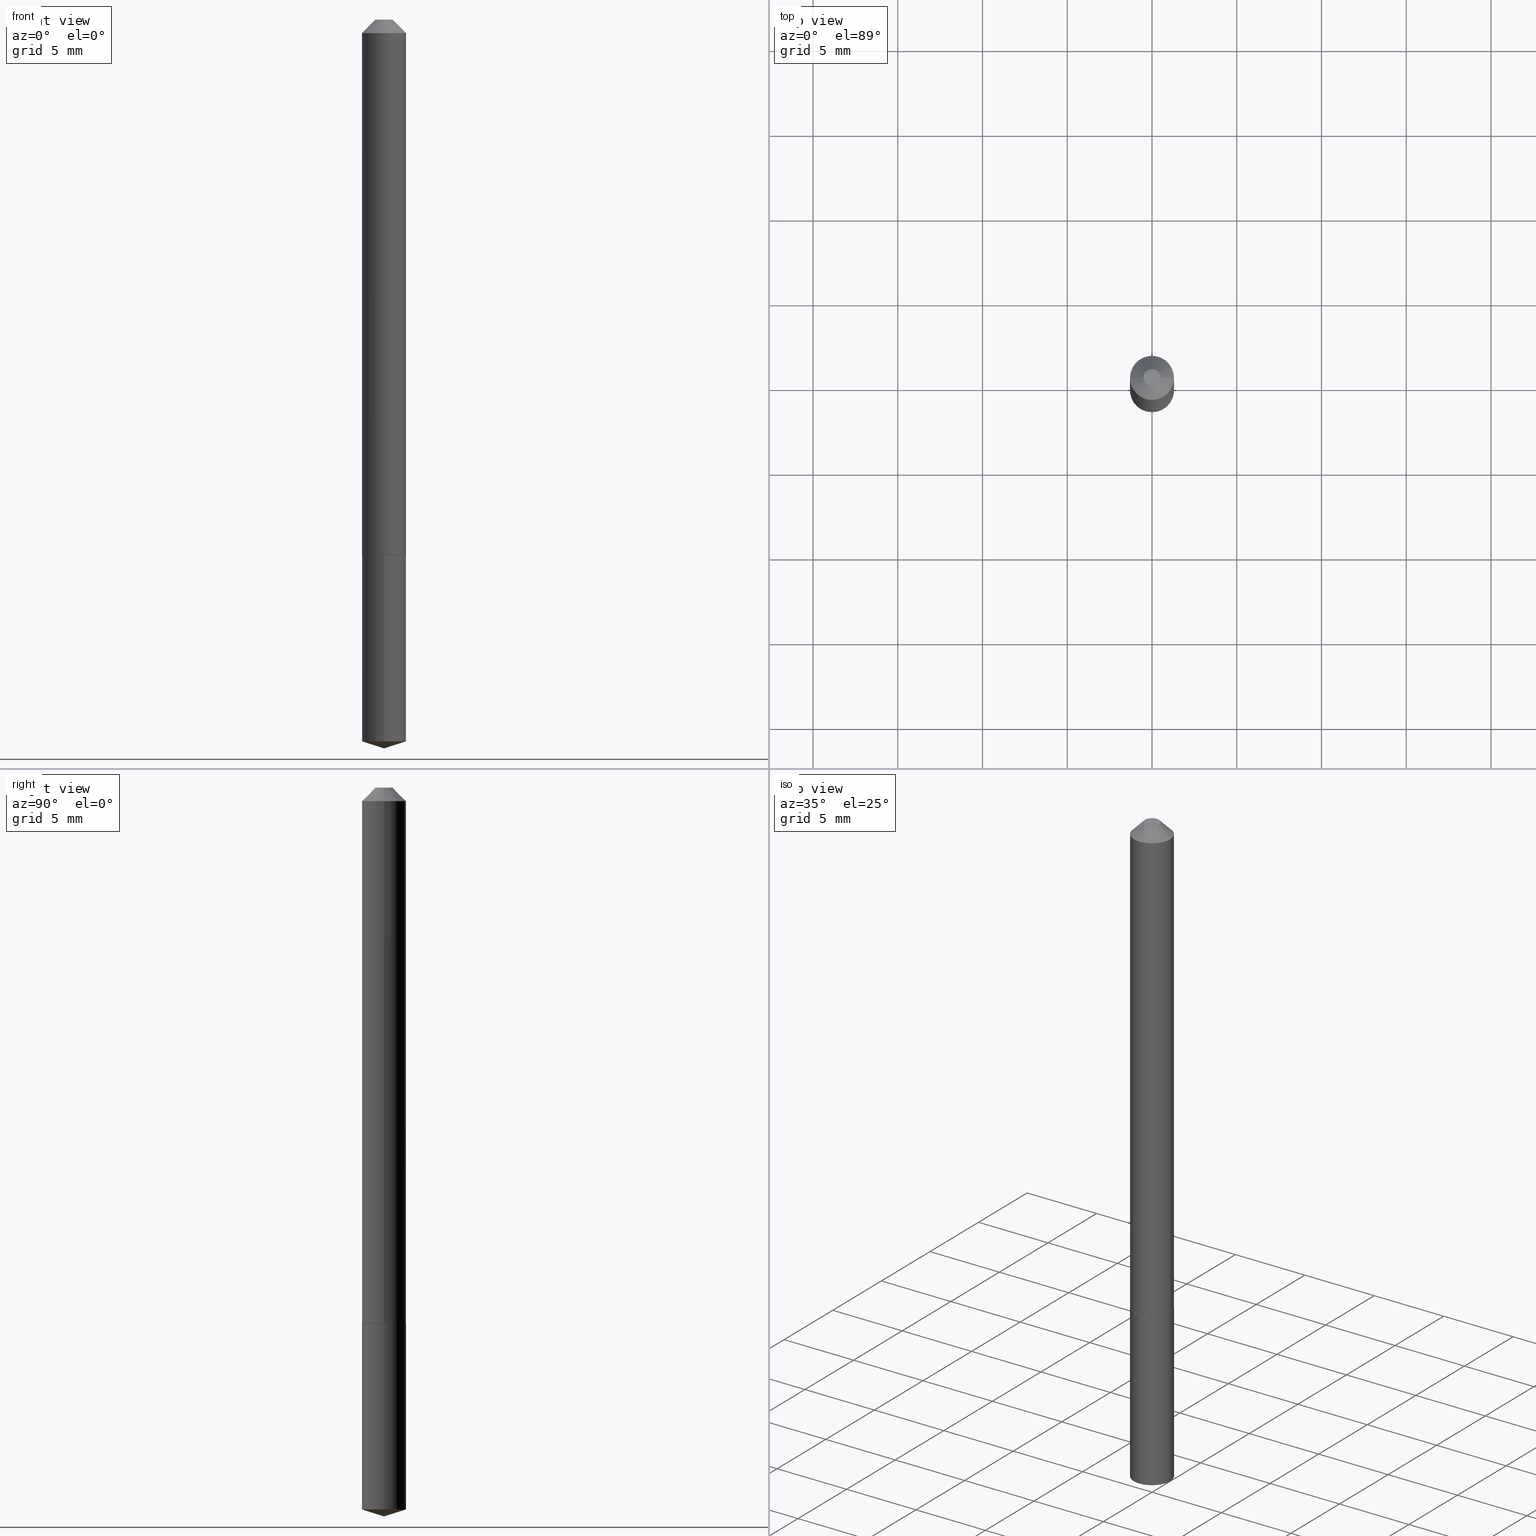
[diagram: canonical four-view strip — front | top / right | iso, engineering-drawing reading convention]
A machine part, canonical four-view strip (front | top / right | iso — engineering-drawing reading convention). The complete STEP part file that produces these views, byte-faithful:
ISO-10303-21;
HEADER;
FILE_DESCRIPTION (( 'STEP AP203' ),
    '1' );
FILE_NAME ('68674.STEP',
    '2024-04-23T13:31:59',
    ( '' ),
    ( '' ),
    'SwSTEP 2.0',
    'SolidWorks 2023',
    '' );
FILE_SCHEMA (( 'CONFIG_CONTROL_DESIGN' ));
ENDSEC;

DATA;
#1 = EDGE_CURVE ( 'NONE', #76, #2, #41, .T. ) ;
#2 = VERTEX_POINT ( 'NONE', #346 ) ;
#3 = PERSON_AND_ORGANIZATION ( #117, #298 ) ;
#4 = APPROVAL_STATUS ( 'not_yet_approved' ) ;
#5 = CIRCLE ( 'NONE', #311, 0.05120000000000000939 ) ;
#6 = EDGE_CURVE ( 'NONE', #214, #62, #142, .T. ) ;
#7 = DIRECTION ( 'NONE',  ( 1.000000000000000000, -6.982962677686261977E-15, 0.000000000000000000 ) ) ;
#8 = FACE_OUTER_BOUND ( 'NONE', #53, .T. ) ;
#9 = DIRECTION ( 'NONE',  ( -2.445468806185136597E-29, 3.491481338843145583E-15, 1.000000000000000000 ) ) ;
#10 = DIRECTION ( 'NONE',  ( -1.000000000000000000, 6.982962677686267499E-15, 0.000000000000000000 ) ) ;
#11 = ORIENTED_EDGE ( 'NONE', *, *, #35, .T. ) ;
#12 = EDGE_CURVE ( 'NONE', #62, #241, #5, .T. ) ;
#13 = ORIENTED_EDGE ( 'NONE', *, *, #6, .F. ) ;
#14 = AXIS2_PLACEMENT_3D ( 'NONE', #375, #195, #16 ) ;
#15 = CC_DESIGN_APPROVAL ( #239, ( #253 ) ) ;
#16 = DIRECTION ( 'NONE',  ( 1.000000000000000000, -6.982962677686261977E-15, 0.000000000000000000 ) ) ;
#17 = EDGE_CURVE ( 'NONE', #317, #161, #136, .T. ) ;
#18 = DIRECTION ( 'NONE',  ( 1.000000000000000000, 0.000000000000000000, 0.000000000000000000 ) ) ;
#19 =( LENGTH_UNIT ( ) NAMED_UNIT ( * ) SI_UNIT ( $, .METRE. ) );
#20 = EDGE_LOOP ( 'NONE', ( #121, #255 ) ) ;
#21 = DIRECTION ( 'NONE',  ( -6.982962677686265133E-15, -1.000000000000000000, 5.335640612625512847E-15 ) ) ;
#22 = PRODUCT_DEFINITION ( 'UNKNOWN', '', #190, #111 ) ;
#23 = AXIS2_PLACEMENT_3D ( 'NONE', #189, #170, #72 ) ;
#24 = FACE_OUTER_BOUND ( 'NONE', #145, .T. ) ;
#25 = EDGE_LOOP ( 'NONE', ( #325, #276, #339 ) ) ;
#26 = FACE_OUTER_BOUND ( 'NONE', #43, .T. ) ;
#27 = APPROVAL_DATE_TIME ( #155, #50 ) ;
#28 = AXIS2_PLACEMENT_3D ( 'NONE', #48, #9, #98 ) ;
#29 = CC_DESIGN_APPROVAL ( #50, ( #22 ) ) ;
#30 = EDGE_CURVE ( 'NONE', #340, #388, #218, .T. ) ;
#31 = PERSON_AND_ORGANIZATION_ROLE ( 'design_supplier' ) ;
#32 = VERTEX_POINT ( 'NONE', #275 ) ;
#33 = APPROVAL_DATE_TIME ( #65, #57 ) ;
#34 = EDGE_CURVE ( 'NONE', #317, #201, #37, .T. ) ;
#35 = EDGE_CURVE ( 'NONE', #241, #380, #222, .T. ) ;
#36 = ORIENTED_EDGE ( 'NONE', *, *, #30, .F. ) ;
#37 = CIRCLE ( 'NONE', #28, 0.01995000000000000592 ) ;
#38 = AXIS2_PLACEMENT_3D ( 'NONE', #144, #109, #382 ) ;
#39 = PERSON_AND_ORGANIZATION ( #117, #298 ) ;
#40 = APPROVAL_STATUS ( 'not_yet_approved' ) ;
#41 = CIRCLE ( 'NONE', #23, 0.05070000000000036283 ) ;
#42 = LOCAL_TIME ( 9, 31, 59.00000000000000000, #226 ) ;
#43 = EDGE_LOOP ( 'NONE', ( #252, #182, #235, #96 ) ) ;
#44 = DIRECTION ( 'NONE',  ( -0.7071067811865452413, 2.468850131082233000E-15, -0.7071067811865497932 ) ) ;
#45 = EDGE_LOOP ( 'NONE', ( #13, #389, #200 ) ) ;
#46 = AXIS2_PLACEMENT_3D ( 'NONE', #265, #358, #114 ) ;
#47 = APPROVAL_DATE_TIME ( #107, #239 ) ;
#48 = CARTESIAN_POINT ( 'NONE',  ( -5.989671091818665474E-48, 8.551662891793964028E-34, 2.449293598294711584E-19 ) ) ;
#49 = CARTESIAN_POINT ( 'NONE',  ( 3.042407741774928155E-29, -4.343751933654757151E-15, -1.244099999999999984 ) ) ;
#50 = APPROVAL ( #40, 'UNSPECIFIED' ) ;
#51 = ORIENTED_EDGE ( 'NONE', *, *, #34, .F. ) ;
#52 = EDGE_CURVE ( 'NONE', #201, #317, #229, .T. ) ;
#53 = EDGE_LOOP ( 'NONE', ( #329, #139 ) ) ;
#54 = CONICAL_SURFACE ( 'NONE', #322, 0.05120000000000001633, 0.7853981633974450594 ) ;
#55 = DIRECTION ( 'NONE',  ( -2.438088387897960049E-29, 3.491481338843145188E-15, 1.000000000000000000 ) ) ;
#56 = CARTESIAN_POINT ( 'NONE',  ( 0.05120000000000016205, -4.699533882082873778E-15, -1.243600000000000039 ) ) ;
#57 = APPROVAL ( #4, 'UNSPECIFIED' ) ;
#58 = CARTESIAN_POINT ( 'NONE',  ( 3.041185007371835914E-29, -4.342006192985336437E-15, -1.243600000000000039 ) ) ;
#59 = ADVANCED_FACE ( 'NONE', ( #133 ), #130, .T. ) ;
#60 = CONICAL_SURFACE ( 'NONE', #148, 0.05120000000000001633, 0.7853981633974450594 ) ;
#61 = CARTESIAN_POINT ( 'NONE',  ( -3.575276890974957291E-16, -0.05120000000000585194, -1.676756702009396083 ) ) ;
#62 = VERTEX_POINT ( 'NONE', #342 ) ;
#63 = CARTESIAN_POINT ( 'NONE',  ( -2.994835545909332737E-48, 4.275831445896982014E-34, 1.224646799147355792E-19 ) ) ;
#64 = ADVANCED_FACE ( 'NONE', ( #192 ), #280, .F. ) ;
#65 = DATE_AND_TIME ( #212, #247 ) ;
#66 = ORIENTED_EDGE ( 'NONE', *, *, #135, .T. ) ;
#67 = PERSON_AND_ORGANIZATION ( #117, #298 ) ;
#68 = AXIS2_PLACEMENT_3D ( 'NONE', #153, #262, #383 ) ;
#69 = AXIS2_PLACEMENT_3D ( 'NONE', #210, #291, #21 ) ;
#70 = CIRCLE ( 'NONE', #38, 0.05120000000000000939 ) ;
#71 = DIRECTION ( 'NONE',  ( 2.445490304284170148E-29, -3.491450552341733464E-15, -1.000000000000000000 ) ) ;
#72 = DIRECTION ( 'NONE',  ( 1.000000000000000000, -6.982962677686261977E-15, 0.000000000000000000 ) ) ;
#73 = CONICAL_SURFACE ( 'NONE', #292, 124.8659371009161418, 1.265363707695894124 ) ;
#74 = AXIS2_PLACEMENT_3D ( 'NONE', #193, #172, #18 ) ;
#75 = DIMENSIONAL_EXPONENTS ( 1.000000000000000000, 0.000000000000000000, 0.000000000000000000, 0.000000000000000000, 0.000000000000000000, 0.000000000000000000, 0.000000000000000000 ) ;
#76 = VERTEX_POINT ( 'NONE', #257 ) ;
#77 = CARTESIAN_POINT ( 'NONE',  ( 3.042407741774928155E-29, -4.343751933654757151E-15, -1.244099999999999984 ) ) ;
#78 = DIRECTION ( 'NONE',  ( -6.982962677686265133E-15, -1.000000000000000000, 5.335640612625512847E-15 ) ) ;
#79 = ORIENTED_EDGE ( 'NONE', *, *, #320, .T. ) ;
#80 = CARTESIAN_POINT ( 'NONE',  ( 4.139970536122672457E-29, -5.910676640059319822E-15, -1.692900000000000071 ) ) ;
#81 = DIRECTION ( 'NONE',  ( 6.776566513254262871E-15, 0.9537169507482294861, 0.3007057995042648479 ) ) ;
#82 = ADVANCED_FACE ( 'NONE', ( #177 ), #232, .T. ) ;
#83 = EDGE_LOOP ( 'NONE', ( #154, #378, #66, #123 ) ) ;
#84 =( NAMED_UNIT ( * ) PLANE_ANGLE_UNIT ( ) SI_UNIT ( $, .RADIAN. ) );
#85 = AXIS2_PLACEMENT_3D ( 'NONE', #249, #169, #373 ) ;
#86 = LOCAL_TIME ( 9, 31, 59.00000000000000000, #207 ) ;
#87 = DIRECTION ( 'NONE',  ( 2.445468806185136597E-29, -3.491481338843145583E-15, -1.000000000000000000 ) ) ;
#88 = MANIFOLD_SOLID_BREP ( 'Body-Move/Copy2[2]', #198 ) ;
#89 = DIRECTION ( 'NONE',  ( 1.000000000000000000, -6.982962677686266711E-15, 4.876176775795936353E-29 ) ) ;
#90 = DIRECTION ( 'NONE',  ( -2.445468806185136597E-29, 3.491481338843145583E-15, 1.000000000000000000 ) ) ;
#91 = AXIS2_PLACEMENT_3D ( 'NONE', #58, #386, #310 ) ;
#92 = CIRCLE ( 'NONE', #171, 0.05120000000000000939 ) ;
#93 = DIRECTION ( 'NONE',  ( -2.445468806185136597E-29, 3.491481338843145583E-15, 1.000000000000000000 ) ) ;
#94 = AXIS2_PLACEMENT_3D ( 'NONE', #202, #178, #326 ) ;
#95 = ADVANCED_FACE ( 'NONE', ( #234 ), #60, .T. ) ;
#96 = ORIENTED_EDGE ( 'NONE', *, *, #256, .F. ) ;
#97 = ORIENTED_EDGE ( 'NONE', *, *, #138, .F. ) ;
#98 = DIRECTION ( 'NONE',  ( 1.000000000000000000, -6.982962677686266711E-15, 4.876182450887180427E-29 ) ) ;
#99 = VECTOR ( 'NONE', #163, 39.37007874015748143 ) ;
#100 = MECHANICAL_CONTEXT ( 'NONE', #260, 'mechanical' ) ;
#101 = AXIS2_PLACEMENT_3D ( 'NONE', #219, #338, #7 ) ;
#102 = APPLICATION_PROTOCOL_DEFINITION ( 'international standard', 'config_control_design', 1994, #313 ) ;
#103 = CARTESIAN_POINT ( 'NONE',  ( 3.042407741774928155E-29, -4.343751933654757151E-15, -1.244099999999999984 ) ) ;
#104 = COORDINATED_UNIVERSAL_TIME_OFFSET ( 5, 0, .BEHIND. ) ;
#105 = EDGE_CURVE ( 'NONE', #380, #228, #333, .T. ) ;
#106 = DIRECTION ( 'NONE',  ( -2.445468806185136597E-29, 3.491481338843145583E-15, 1.000000000000000000 ) ) ;
#107 = DATE_AND_TIME ( #319, #42 ) ;
#108 = DIRECTION ( 'NONE',  ( -6.982962677686265133E-15, -1.000000000000000000, 5.335640612625512847E-15 ) ) ;
#109 = DIRECTION ( 'NONE',  ( -2.445490304284170708E-29, 3.491450552341733069E-15, 1.000000000000000000 ) ) ;
#110 = PERSON_AND_ORGANIZATION ( #117, #298 ) ;
#111 = DESIGN_CONTEXT ( 'detailed design', #313, 'design' ) ;
#112 = ADVANCED_FACE ( 'NONE', ( #149 ), #355, .T. ) ;
#113 = DIRECTION ( 'NONE',  ( 0.7071067811864750752, -2.468850131081498176E-15, 0.7071067811866199593 ) ) ;
#114 = DIRECTION ( 'NONE',  ( 1.000000000000000000, -6.982962677686267499E-15, 0.000000000000000000 ) ) ;
#115 = ORIENTED_EDGE ( 'NONE', *, *, #146, .T. ) ;
#116 = CIRCLE ( 'NONE', #46, 0.05120000000000001633 ) ;
#117 = PERSON ( 'UNSPECIFIED', 'UNSPECIFIED', 'UNSPECIFIED', ('UNSPECIFIED'), ('UNSPECIFIED'), ('UNSPECIFIED') ) ;
#118 = CARTESIAN_POINT ( 'NONE',  ( 0.000000000000000000, 0.000000000000000000, 0.000000000000000000 ) ) ;
#119 = DIRECTION ( 'NONE',  ( -2.445468806185136597E-29, 3.491481338843145583E-15, 1.000000000000000000 ) ) ;
#120 = EDGE_CURVE ( 'NONE', #388, #161, #147, .T. ) ;
#121 = ORIENTED_EDGE ( 'NONE', *, *, #105, .T. ) ;
#122 = AXIS2_PLACEMENT_3D ( 'NONE', #77, #71, #315 ) ;
#123 = ORIENTED_EDGE ( 'NONE', *, *, #17, .F. ) ;
#124 = SECURITY_CLASSIFICATION_LEVEL ( 'unclassified' ) ;
#125 = ORIENTED_EDGE ( 'NONE', *, *, #279, .T. ) ;
#126 = CARTESIAN_POINT ( 'NONE',  ( 3.637978807092123827E-16, 0.05119999999999565871, -1.244100000000000206 ) ) ;
#127 = FACE_OUTER_BOUND ( 'NONE', #20, .T. ) ;
#128 = ADVANCED_FACE ( 'NONE', ( #24 ), #179, .T. ) ;
#129 = PERSON_AND_ORGANIZATION ( #117, #298 ) ;
#130 = CONICAL_SURFACE ( 'NONE', #85, 124.8659371009161418, 1.265363707695894124 ) ;
#131 = AXIS2_PLACEMENT_3D ( 'NONE', #187, #134, #78 ) ;
#132 = DIRECTION ( 'NONE',  ( -6.659769872151637611E-15, -0.9537169507482274877, 0.3007057995042715093 ) ) ;
#133 = FACE_OUTER_BOUND ( 'NONE', #45, .T. ) ;
#134 = DIRECTION ( 'NONE',  ( -2.445490304284170708E-29, 3.491450552341733069E-15, 1.000000000000000000 ) ) ;
#135 = EDGE_CURVE ( 'NONE', #32, #161, #116, .T. ) ;
#136 = LINE ( 'NONE', #251, #205 ) ;
#137 = CARTESIAN_POINT ( 'NONE',  ( -3.575276890975064280E-16, -0.05120000000000435314, -1.244099999999999762 ) ) ;
#138 = EDGE_CURVE ( 'NONE', #388, #340, #258, .T. ) ;
#139 = ORIENTED_EDGE ( 'NONE', *, *, #52, .T. ) ;
#140 = CC_DESIGN_SECURITY_CLASSIFICATION ( #253, ( #190 ) ) ;
#141 = APPROVAL_ROLE ( '' ) ;
#142 = LINE ( 'NONE', #381, #376 ) ;
#143 = CALENDAR_DATE ( 2024, 23, 4 ) ;
#144 = CARTESIAN_POINT ( 'NONE',  ( 3.042407741774928155E-29, -4.343751933654757151E-15, -1.244099999999999984 ) ) ;
#145 = EDGE_LOOP ( 'NONE', ( #271, #125, #115, #97 ) ) ;
#146 = EDGE_CURVE ( 'NONE', #76, #340, #286, .T. ) ;
#147 = LINE ( 'NONE', #156, #188 ) ;
#148 = AXIS2_PLACEMENT_3D ( 'NONE', #357, #87, #354 ) ;
#149 = FACE_OUTER_BOUND ( 'NONE', #158, .T. ) ;
#150 = DIRECTION ( 'NONE',  ( -6.982962677686265133E-15, -1.000000000000000000, 5.335640612625512847E-15 ) ) ;
#151 = LINE ( 'NONE', #384, #231 ) ;
#152 = ADVANCED_FACE ( 'NONE', ( #213 ), #73, .T. ) ;
#153 = CARTESIAN_POINT ( 'NONE',  ( 3.041185007371835914E-29, -4.342006192985336437E-15, -1.243600000000000039 ) ) ;
#154 = ORIENTED_EDGE ( 'NONE', *, *, #52, .F. ) ;
#155 = DATE_AND_TIME ( #143, #160 ) ;
#156 = CARTESIAN_POINT ( 'NONE',  ( -0.05120000000000009266, 3.637978807091719535E-16, -2.518494766210516482E-30 ) ) ;
#157 = ORIENTED_EDGE ( 'NONE', *, *, #270, .T. ) ;
#158 = EDGE_LOOP ( 'NONE', ( #227, #305, #36, #230 ) ) ;
#159 = CLOSED_SHELL ( 'NONE', ( #82, #152, #59, #287, #174 ) ) ;
#160 = LOCAL_TIME ( 9, 31, 59.00000000000000000, #104 ) ;
#161 = VERTEX_POINT ( 'NONE', #335 ) ;
#162 = FACE_OUTER_BOUND ( 'NONE', #83, .T. ) ;
#163 = DIRECTION ( 'NONE',  ( -2.445490304284170708E-29, 3.491450552341733464E-15, 1.000000000000000000 ) ) ;
#164 = DATE_TIME_ROLE ( 'creation_date' ) ;
#165 = ORIENTED_EDGE ( 'NONE', *, *, #270, .F. ) ;
#166 = APPLICATION_PROTOCOL_DEFINITION ( 'international standard', 'config_control_design', 1994, #260 ) ;
#167 = EDGE_CURVE ( 'NONE', #201, #32, #343, .T. ) ;
#168 = ORIENTED_EDGE ( 'NONE', *, *, #167, .F. ) ;
#169 = DIRECTION ( 'NONE',  ( -2.445490304284170708E-29, 3.491450552341733069E-15, 1.000000000000000000 ) ) ;
#170 = DIRECTION ( 'NONE',  ( -2.445468806185136597E-29, 3.491481338843145583E-15, 1.000000000000000000 ) ) ;
#171 = AXIS2_PLACEMENT_3D ( 'NONE', #283, #185, #150 ) ;
#172 = DIRECTION ( 'NONE',  ( 0.000000000000000000, 0.000000000000000000, 1.000000000000000000 ) ) ;
#173 = CARTESIAN_POINT ( 'NONE',  ( -5.989671091818665474E-48, 8.551662891793964028E-34, 2.449293598294711584E-19 ) ) ;
#174 = ADVANCED_FACE ( 'NONE', ( #127 ), #196, .F. ) ;
#175 = CIRCLE ( 'NONE', #377, 0.05120000000000001633 ) ;
#176 = EDGE_CURVE ( 'NONE', #214, #241, #306, .T. ) ;
#177 = FACE_OUTER_BOUND ( 'NONE', #361, .T. ) ;
#178 = DIRECTION ( 'NONE',  ( -2.445468806185136597E-29, 3.491481338843145583E-15, 1.000000000000000000 ) ) ;
#179 = CONICAL_SURFACE ( 'NONE', #68, 0.05120000000000016205, 0.7853981633973459164 ) ;
#180 = FACE_OUTER_BOUND ( 'NONE', #324, .T. ) ;
#181 = PERSON_AND_ORGANIZATION ( #117, #298 ) ;
#182 = ORIENTED_EDGE ( 'NONE', *, *, #120, .T. ) ;
#183 = APPROVAL_PERSON_ORGANIZATION ( #217, #239, #141 ) ;
#184 = COORDINATED_UNIVERSAL_TIME_OFFSET ( 5, 0, .BEHIND. ) ;
#185 = DIRECTION ( 'NONE',  ( -2.445490304284170708E-29, 3.491450552341733069E-15, 1.000000000000000000 ) ) ;
#186 = ADVANCED_FACE ( 'NONE', ( #8 ), #236, .F. ) ;
#187 = CARTESIAN_POINT ( 'NONE',  ( 3.042407741774928155E-29, -4.343751933654757151E-15, -1.244099999999999984 ) ) ;
#188 = VECTOR ( 'NONE', #294, 39.37007874015748143 ) ;
#189 = CARTESIAN_POINT ( 'NONE',  ( 3.042407741774928155E-29, -4.343751933654757151E-15, -1.244099999999999984 ) ) ;
#190 = PRODUCT_DEFINITION_FORMATION_WITH_SPECIFIED_SOURCE ( 'ANY', '', #353, .NOT_KNOWN. ) ;
#191 = DIRECTION ( 'NONE',  ( 0.7071067811865452413, -7.319954787623248157E-15, -0.7071067811865497932 ) ) ;
#192 = FACE_OUTER_BOUND ( 'NONE', #367, .T. ) ;
#193 = CARTESIAN_POINT ( 'NONE',  ( 0.000000000000000000, 0.000000000000000000, 0.000000000000000000 ) ) ;
#194 = CARTESIAN_POINT ( 'NONE',  ( -0.01995000000000000592, 1.938645013392645287E-16, 2.449293598283064041E-19 ) ) ;
#195 = DIRECTION ( 'NONE',  ( -2.445468806185136597E-29, 3.491481338843145583E-15, 1.000000000000000000 ) ) ;
#196 = PLANE ( 'NONE',  #122 ) ;
#197 = CARTESIAN_POINT ( 'NONE',  ( 4.100465511622472783E-29, -5.854351414859816956E-15, -1.676756702009396527 ) ) ;
#198 = CLOSED_SHELL ( 'NONE', ( #359, #199, #112, #64, #128, #204, #95, #186 ) ) ;
#199 = ADVANCED_FACE ( 'NONE', ( #26 ), #264, .T. ) ;
#200 = ORIENTED_EDGE ( 'NONE', *, *, #12, .F. ) ;
#201 = VERTEX_POINT ( 'NONE', #211 ) ;
#202 = CARTESIAN_POINT ( 'NONE',  ( 3.041185007371835914E-29, -4.342006192985336437E-15, -1.243600000000000039 ) ) ;
#203 = ORIENTED_EDGE ( 'NONE', *, *, #256, .T. ) ;
#204 = ADVANCED_FACE ( 'NONE', ( #180 ), #301, .T. ) ;
#205 = VECTOR ( 'NONE', #44, 39.37007874015748143 ) ;
#206 = CARTESIAN_POINT ( 'NONE',  ( 7.642090019328602662E-31, -1.091087918388490267E-16, -0.03125000000000020817 ) ) ;
#207 = COORDINATED_UNIVERSAL_TIME_OFFSET ( 5, 0, .BEHIND. ) ;
#208 = DIRECTION ( 'NONE',  ( -1.000000000000000000, 6.982962677686265922E-15, -4.876176775795935793E-29 ) ) ;
#209 = PRODUCT_RELATED_PRODUCT_CATEGORY ( 'detail', '', ( #353 ) ) ;
#210 = CARTESIAN_POINT ( 'NONE',  ( 3.042407741774928155E-29, -4.343751933654757151E-15, -1.244099999999999984 ) ) ;
#211 = CARTESIAN_POINT ( 'NONE',  ( 0.01995000000000000592, -2.986166121901468526E-16, 2.449293598310016467E-19 ) ) ;
#212 = CALENDAR_DATE ( 2024, 23, 4 ) ;
#213 = FACE_OUTER_BOUND ( 'NONE', #25, .T. ) ;
#214 = VERTEX_POINT ( 'NONE', #80 ) ;
#215 = DIRECTION ( 'NONE',  ( 1.000000000000000000, -6.982962677686266711E-15, 4.876176775795936353E-29 ) ) ;
#216 = PERSON_AND_ORGANIZATION_ROLE ( 'creator' ) ;
#217 = PERSON_AND_ORGANIZATION ( #117, #298 ) ;
#218 = CIRCLE ( 'NONE', #14, 0.05120000000000016205 ) ;
#219 = CARTESIAN_POINT ( 'NONE',  ( 3.042407741774928155E-29, -4.343751933654757151E-15, -1.244099999999999984 ) ) ;
#220 = ORIENTED_EDGE ( 'NONE', *, *, #279, .F. ) ;
#221 = AXIS2_PLACEMENT_3D ( 'NONE', #118, #90, #89 ) ;
#222 = LINE ( 'NONE', #254, #274 ) ;
#223 = CARTESIAN_POINT ( 'NONE',  ( -9.213920204762181720E-28, 1.315479682215146334E-13, 37.67717874015747981 ) ) ;
#224 = DIRECTION ( 'NONE',  ( -0.7071067811864750752, 7.493145998870092258E-15, 0.7071067811866199593 ) ) ;
#225 = DIRECTION ( 'NONE',  ( 1.000000000000000000, -6.982962677686266711E-15, 4.876182450887180427E-29 ) ) ;
#226 = COORDINATED_UNIVERSAL_TIME_OFFSET ( 5, 0, .BEHIND. ) ;
#227 = ORIENTED_EDGE ( 'NONE', *, *, #1, .T. ) ;
#228 = VERTEX_POINT ( 'NONE', #126 ) ;
#229 = CIRCLE ( 'NONE', #321, 0.01995000000000000592 ) ;
#230 = ORIENTED_EDGE ( 'NONE', *, *, #146, .F. ) ;
#231 = VECTOR ( 'NONE', #352, 39.37007874015748143 ) ;
#232 = CYLINDRICAL_SURFACE ( 'NONE', #349, 0.05120000000000000939 ) ;
#233 = EDGE_CURVE ( 'NONE', #62, #228, #242, .T. ) ;
#234 = FACE_OUTER_BOUND ( 'NONE', #371, .T. ) ;
#235 = ORIENTED_EDGE ( 'NONE', *, *, #135, .F. ) ;
#236 = PLANE ( 'NONE',  #341 ) ;
#237 = ORIENTED_EDGE ( 'NONE', *, *, #35, .F. ) ;
#238 = VECTOR ( 'NONE', #191, 39.37007874015748143 ) ;
#239 = APPROVAL ( #282, 'UNSPECIFIED' ) ;
#240 = DIRECTION ( 'NONE',  ( 1.000000000000000000, -6.982962677686267499E-15, 0.000000000000000000 ) ) ;
#241 = VERTEX_POINT ( 'NONE', #61 ) ;
#242 = LINE ( 'NONE', #368, #99 ) ;
#243 = DIRECTION ( 'NONE',  ( -2.445490304284170708E-29, 3.491450552341733069E-15, 1.000000000000000000 ) ) ;
#244 = CC_DESIGN_DATE_AND_TIME_ASSIGNMENT ( #331, #337, ( #253 ) ) ;
#245 = COORDINATED_UNIVERSAL_TIME_OFFSET ( 5, 0, .BEHIND. ) ;
#246 = CYLINDRICAL_SURFACE ( 'NONE', #131, 0.05120000000000000939 ) ;
#247 = LOCAL_TIME ( 9, 31, 59.00000000000000000, #184 ) ;
#248 = ORIENTED_EDGE ( 'NONE', *, *, #1, .F. ) ;
#249 = CARTESIAN_POINT ( 'NONE',  ( -9.213920204762181720E-28, 1.315479682215146334E-13, 37.67717874015747981 ) ) ;
#250 = CARTESIAN_POINT ( 'NONE',  ( -0.05120000000000016205, -3.978208312276164187E-15, -1.243600000000000039 ) ) ;
#251 = CARTESIAN_POINT ( 'NONE',  ( -0.05120000000000001633, 2.484188972586879944E-16, -0.03125000000000020817 ) ) ;
#252 = ORIENTED_EDGE ( 'NONE', *, *, #30, .T. ) ;
#253 = SECURITY_CLASSIFICATION ( '', '', #124 ) ;
#254 = CARTESIAN_POINT ( 'NONE',  ( -3.575276890975064280E-16, -0.05120000000000435314, -1.244099999999999762 ) ) ;
#255 = ORIENTED_EDGE ( 'NONE', *, *, #328, .T. ) ;
#256 = EDGE_CURVE ( 'NONE', #340, #32, #151, .T. ) ;
#257 = CARTESIAN_POINT ( 'NONE',  ( 0.05070000000000036283, -4.697788141413453852E-15, -1.244099999999999984 ) ) ;
#258 = CIRCLE ( 'NONE', #91, 0.05120000000000016205 ) ;
#259 = UNCERTAINTY_MEASURE_WITH_UNIT (LENGTH_MEASURE( 1.000000000000000082E-05 ), #273, 'distance_accuracy_value', 'NONE');
#260 = APPLICATION_CONTEXT ( 'configuration controlled 3d designs of mechanical parts and assemblies' ) ;
#261 = CC_DESIGN_PERSON_AND_ORGANIZATION_ASSIGNMENT ( #39, #336, ( #353 ) ) ;
#262 = DIRECTION ( 'NONE',  ( -2.445468806185136597E-29, 3.491481338843145583E-15, 1.000000000000000000 ) ) ;
#263 = CARTESIAN_POINT ( 'NONE',  ( -0.05120000000000016205, -3.978208312276164187E-15, -1.243600000000000039 ) ) ;
#264 = CYLINDRICAL_SURFACE ( 'NONE', #221, 0.05120000000000009266 ) ;
#265 = CARTESIAN_POINT ( 'NONE',  ( 7.642090019328602662E-31, -1.091087918388490267E-16, -0.03125000000000020817 ) ) ;
#266 = LINE ( 'NONE', #250, #284 ) ;
#267 = PERSON_AND_ORGANIZATION_ROLE ( 'classification_officer' ) ;
#268 = CALENDAR_DATE ( 2024, 23, 4 ) ;
#269 = CIRCLE ( 'NONE', #101, 0.05070000000000036283 ) ;
#270 = EDGE_CURVE ( 'NONE', #161, #32, #175, .T. ) ;
#271 = ORIENTED_EDGE ( 'NONE', *, *, #348, .F. ) ;
#272 = CARTESIAN_POINT ( 'NONE',  ( 4.139917044552656285E-29, -5.910753243032135452E-15, -1.692900000000000071 ) ) ;
#273 =( CONVERSION_BASED_UNIT ( 'INCH', #309 ) LENGTH_UNIT ( ) NAMED_UNIT ( #75 ) );
#274 = VECTOR ( 'NONE', #316, 39.37007874015748143 ) ;
#275 = CARTESIAN_POINT ( 'NONE',  ( 0.05120000000000001633, -4.666364809363860477E-16, -0.03125000000000020817 ) ) ;
#276 = ORIENTED_EDGE ( 'NONE', *, *, #6, .T. ) ;
#277 = DIRECTION ( 'NONE',  ( -6.982962677686266711E-15, -1.000000000000000000, 3.500519750498674455E-15 ) ) ;
#278 = ORIENTED_EDGE ( 'NONE', *, *, #12, .T. ) ;
#279 = EDGE_CURVE ( 'NONE', #2, #76, #269, .T. ) ;
#280 = PLANE ( 'NONE',  #303 ) ;
#281 = APPROVAL_ROLE ( '' ) ;
#282 = APPROVAL_STATUS ( 'not_yet_approved' ) ;
#283 = CARTESIAN_POINT ( 'NONE',  ( 4.100465511622472783E-29, -5.854351414859816956E-15, -1.676756702009396527 ) ) ;
#284 = VECTOR ( 'NONE', #224, 39.37007874015748143 ) ;
#285 = ORIENTED_EDGE ( 'NONE', *, *, #233, .F. ) ;
#286 = LINE ( 'NONE', #351, #362 ) ;
#287 = ADVANCED_FACE ( 'NONE', ( #308 ), #246, .T. ) ;
#288 = DIRECTION ( 'NONE',  ( -2.445490304284170708E-29, 3.491450552341733069E-15, 1.000000000000000000 ) ) ;
#289 = ADVANCED_BREP_SHAPE_REPRESENTATION ( '68674', ( #356, #88, #74 ), #312 ) ;
#290 = PRODUCT_DEFINITION_SHAPE ( 'NONE', 'NONE',  #22 ) ;
#291 = DIRECTION ( 'NONE',  ( -2.445490304284170708E-29, 3.491450552341733069E-15, 1.000000000000000000 ) ) ;
#292 = AXIS2_PLACEMENT_3D ( 'NONE', #223, #243, #277 ) ;
#293 = CC_DESIGN_PERSON_AND_ORGANIZATION_ASSIGNMENT ( #181, #31, ( #190 ) ) ;
#294 = DIRECTION ( 'NONE',  ( -2.445468806185136877E-29, 3.491481338843145188E-15, 1.000000000000000000 ) ) ;
#295 = ORIENTED_EDGE ( 'NONE', *, *, #17, .T. ) ;
#296 = DIRECTION ( 'NONE',  ( 1.000000000000000000, -6.982962677686265922E-15, 4.876176775795935793E-29 ) ) ;
#297 =( NAMED_UNIT ( * ) SI_UNIT ( $, .STERADIAN. ) SOLID_ANGLE_UNIT ( ) );
#298 = ORGANIZATION ( 'UNSPECIFIED', 'UNSPECIFIED', '' ) ;
#299 = APPROVAL_ROLE ( '' ) ;
#300 = ORIENTED_EDGE ( 'NONE', *, *, #328, .F. ) ;
#301 = CYLINDRICAL_SURFACE ( 'NONE', #370, 0.05120000000000009266 ) ;
#302 = PERSON_AND_ORGANIZATION_ROLE ( 'creator' ) ;
#303 = AXIS2_PLACEMENT_3D ( 'NONE', #103, #55, #296 ) ;
#304 = CC_DESIGN_APPROVAL ( #57, ( #190 ) ) ;
#305 = ORIENTED_EDGE ( 'NONE', *, *, #348, .T. ) ;
#306 = LINE ( 'NONE', #272, #327 ) ;
#307 = DIRECTION ( 'NONE',  ( 2.445468806185136597E-29, -3.491481338843145583E-15, -1.000000000000000000 ) ) ;
#308 = FACE_OUTER_BOUND ( 'NONE', #360, .T. ) ;
#309 = LENGTH_MEASURE_WITH_UNIT ( LENGTH_MEASURE( 0.02539999999999999897 ), #19 );
#310 = DIRECTION ( 'NONE',  ( 1.000000000000000000, -6.982962677686261977E-15, 0.000000000000000000 ) ) ;
#311 = AXIS2_PLACEMENT_3D ( 'NONE', #197, #323, #344 ) ;
#312 =( GEOMETRIC_REPRESENTATION_CONTEXT ( 3 ) GLOBAL_UNCERTAINTY_ASSIGNED_CONTEXT ( ( #259 ) ) GLOBAL_UNIT_ASSIGNED_CONTEXT ( ( #273, #84, #297 ) ) REPRESENTATION_CONTEXT ( 'NONE', 'WORKASPACE' ) );
#313 = APPLICATION_CONTEXT ( 'configuration controlled 3d designs of mechanical parts and assemblies' ) ;
#314 = ORIENTED_EDGE ( 'NONE', *, *, #233, .T. ) ;
#315 = DIRECTION ( 'NONE',  ( 6.982962677686265922E-15, 1.000000000000000000, -3.491450552341733464E-15 ) ) ;
#316 = DIRECTION ( 'NONE',  ( -2.445490304284170708E-29, 3.491450552341733464E-15, 1.000000000000000000 ) ) ;
#317 = VERTEX_POINT ( 'NONE', #194 ) ;
#318 = PERSON_AND_ORGANIZATION ( #117, #298 ) ;
#319 = CALENDAR_DATE ( 2024, 23, 4 ) ;
#320 = EDGE_CURVE ( 'NONE', #241, #62, #92, .T. ) ;
#321 = AXIS2_PLACEMENT_3D ( 'NONE', #173, #106, #225 ) ;
#322 = AXIS2_PLACEMENT_3D ( 'NONE', #369, #307, #10 ) ;
#323 = DIRECTION ( 'NONE',  ( -2.445490304284170708E-29, 3.491450552341733069E-15, 1.000000000000000000 ) ) ;
#324 = EDGE_LOOP ( 'NONE', ( #332, #350, #203, #165 ) ) ;
#325 = ORIENTED_EDGE ( 'NONE', *, *, #176, .F. ) ;
#326 = DIRECTION ( 'NONE',  ( 1.000000000000000000, -6.982962677686261977E-15, 0.000000000000000000 ) ) ;
#327 = VECTOR ( 'NONE', #132, 39.37007874015748143 ) ;
#328 = EDGE_CURVE ( 'NONE', #228, #380, #70, .T. ) ;
#329 = ORIENTED_EDGE ( 'NONE', *, *, #34, .T. ) ;
#330 = CALENDAR_DATE ( 2024, 23, 4 ) ;
#331 = DATE_AND_TIME ( #330, #86 ) ;
#332 = ORIENTED_EDGE ( 'NONE', *, *, #120, .F. ) ;
#333 = CIRCLE ( 'NONE', #69, 0.05120000000000000939 ) ;
#334 = LOCAL_TIME ( 9, 31, 59.00000000000000000, #245 ) ;
#335 = CARTESIAN_POINT ( 'NONE',  ( -0.05120000000000001633, -1.861759611702918942E-15, -0.03125000000000020817 ) ) ;
#336 = PERSON_AND_ORGANIZATION_ROLE ( 'design_owner' ) ;
#337 = DATE_TIME_ROLE ( 'classification_date' ) ;
#338 = DIRECTION ( 'NONE',  ( -2.445468806185136597E-29, 3.491481338843145583E-15, 1.000000000000000000 ) ) ;
#339 = ORIENTED_EDGE ( 'NONE', *, *, #320, .F. ) ;
#340 = VERTEX_POINT ( 'NONE', #56 ) ;
#341 = AXIS2_PLACEMENT_3D ( 'NONE', #63, #387, #208 ) ;
#342 = CARTESIAN_POINT ( 'NONE',  ( 3.637978807092122841E-16, 0.05119999999999413215, -1.676756702009396749 ) ) ;
#343 = LINE ( 'NONE', #374, #238 ) ;
#344 = DIRECTION ( 'NONE',  ( -6.982962677686265133E-15, -1.000000000000000000, 5.335640612625512847E-15 ) ) ;
#345 = ORIENTED_EDGE ( 'NONE', *, *, #105, .F. ) ;
#346 = CARTESIAN_POINT ( 'NONE',  ( -0.05070000000000036283, -3.980857539450273811E-15, -1.244099999999999984 ) ) ;
#347 = SHAPE_DEFINITION_REPRESENTATION ( #290, #289 ) ;
#348 = EDGE_CURVE ( 'NONE', #2, #388, #266, .T. ) ;
#349 = AXIS2_PLACEMENT_3D ( 'NONE', #49, #288, #108 ) ;
#350 = ORIENTED_EDGE ( 'NONE', *, *, #138, .T. ) ;
#351 = CARTESIAN_POINT ( 'NONE',  ( 0.05120000000000016205, -4.699533882082873778E-15, -1.243600000000000039 ) ) ;
#352 = DIRECTION ( 'NONE',  ( -2.445468806185136877E-29, 3.491481338843145188E-15, 1.000000000000000000 ) ) ;
#353 = PRODUCT ( '68674', '68674', '', ( #100 ) ) ;
#354 = DIRECTION ( 'NONE',  ( -1.000000000000000000, 6.982962677686267499E-15, 0.000000000000000000 ) ) ;
#355 = CONICAL_SURFACE ( 'NONE', #94, 0.05120000000000016205, 0.7853981633973459164 ) ;
#356 = MANIFOLD_SOLID_BREP ( 'Body-Move/Copy2[1]', #159 ) ;
#357 = CARTESIAN_POINT ( 'NONE',  ( 7.642090019328602662E-31, -1.091087918388490267E-16, -0.03125000000000020817 ) ) ;
#358 = DIRECTION ( 'NONE',  ( -2.445468806185136597E-29, 3.491481338843145583E-15, 1.000000000000000000 ) ) ;
#359 = ADVANCED_FACE ( 'NONE', ( #162 ), #54, .T. ) ;
#360 = EDGE_LOOP ( 'NONE', ( #285, #278, #11, #300 ) ) ;
#361 = EDGE_LOOP ( 'NONE', ( #79, #314, #345, #237 ) ) ;
#362 = VECTOR ( 'NONE', #113, 39.37007874015748143 ) ;
#363 = CARTESIAN_POINT ( 'NONE',  ( 0.000000000000000000, 0.000000000000000000, 0.000000000000000000 ) ) ;
#364 = APPROVAL_PERSON_ORGANIZATION ( #318, #50, #281 ) ;
#365 = DATE_AND_TIME ( #268, #334 ) ;
#366 = CC_DESIGN_PERSON_AND_ORGANIZATION_ASSIGNMENT ( #110, #216, ( #22 ) ) ;
#367 = EDGE_LOOP ( 'NONE', ( #248, #220 ) ) ;
#368 = CARTESIAN_POINT ( 'NONE',  ( 3.637978807092017330E-16, 0.05119999999999565871, -1.244100000000000206 ) ) ;
#369 = CARTESIAN_POINT ( 'NONE',  ( 7.642090019328602662E-31, -1.091087918388490267E-16, -0.03125000000000020817 ) ) ;
#370 = AXIS2_PLACEMENT_3D ( 'NONE', #363, #93, #215 ) ;
#371 = EDGE_LOOP ( 'NONE', ( #168, #51, #295, #157 ) ) ;
#372 = CC_DESIGN_DATE_AND_TIME_ASSIGNMENT ( #365, #164, ( #22 ) ) ;
#373 = DIRECTION ( 'NONE',  ( -6.982962677686266711E-15, -1.000000000000000000, 3.500519750498674455E-15 ) ) ;
#374 = CARTESIAN_POINT ( 'NONE',  ( 0.05120000000000001633, -4.603662893247515343E-16, -0.03125000000000020817 ) ) ;
#375 = CARTESIAN_POINT ( 'NONE',  ( 3.041185007371835914E-29, -4.342006192985336437E-15, -1.243600000000000039 ) ) ;
#376 = VECTOR ( 'NONE', #81, 39.37007874015748143 ) ;
#377 = AXIS2_PLACEMENT_3D ( 'NONE', #206, #119, #240 ) ;
#378 = ORIENTED_EDGE ( 'NONE', *, *, #167, .T. ) ;
#379 = CC_DESIGN_PERSON_AND_ORGANIZATION_ASSIGNMENT ( #3, #267, ( #253 ) ) ;
#380 = VERTEX_POINT ( 'NONE', #137 ) ;
#381 = CARTESIAN_POINT ( 'NONE',  ( 4.139971005180600538E-29, -5.910676640059319822E-15, -1.692900000000000071 ) ) ;
#382 = DIRECTION ( 'NONE',  ( -6.982962677686265133E-15, -1.000000000000000000, 5.335640612625512847E-15 ) ) ;
#383 = DIRECTION ( 'NONE',  ( 1.000000000000000000, -6.982962677686261977E-15, 0.000000000000000000 ) ) ;
#384 = CARTESIAN_POINT ( 'NONE',  ( 0.05120000000000009266, -3.575276890975374894E-16, 2.496602509207523938E-30 ) ) ;
#385 = APPROVAL_PERSON_ORGANIZATION ( #67, #57, #299 ) ;
#386 = DIRECTION ( 'NONE',  ( -2.445468806185136597E-29, 3.491481338843145583E-15, 1.000000000000000000 ) ) ;
#387 = DIRECTION ( 'NONE',  ( 2.438088387897960049E-29, -3.491481338843145188E-15, -1.000000000000000000 ) ) ;
#388 = VERTEX_POINT ( 'NONE', #263 ) ;
#389 = ORIENTED_EDGE ( 'NONE', *, *, #176, .T. ) ;
#390 = CC_DESIGN_PERSON_AND_ORGANIZATION_ASSIGNMENT ( #129, #302, ( #190 ) ) ;
ENDSEC;
END-ISO-10303-21;
